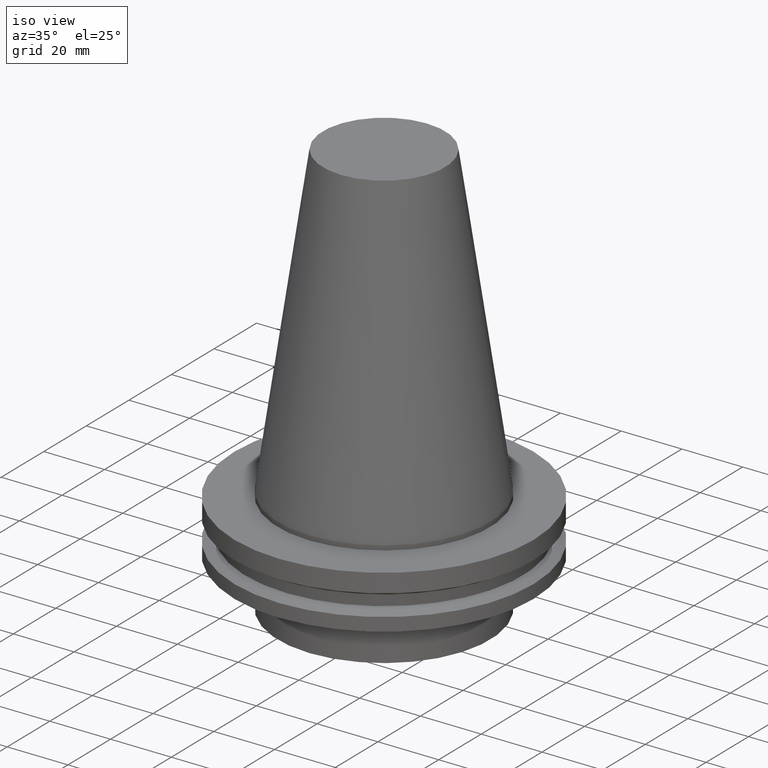
[diagram: clean part render]
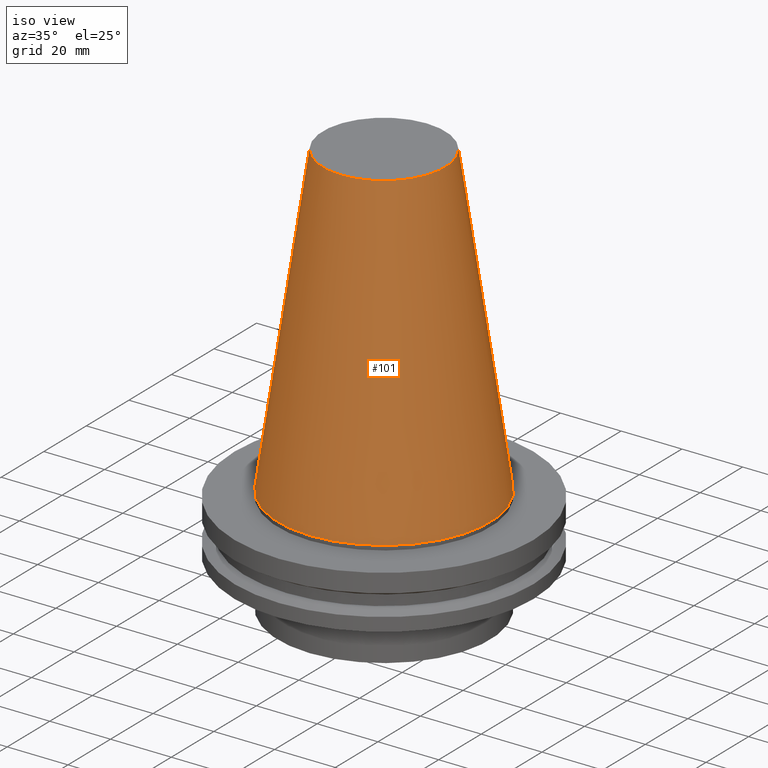
[diagram: tour spotlight — one face highlighted and labeled with its STEP entity id]
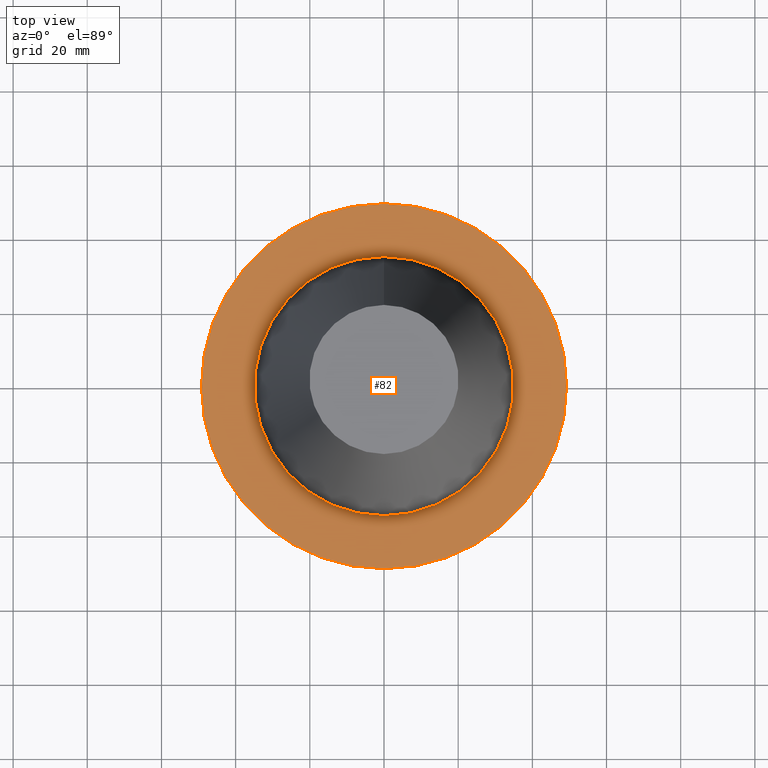
[diagram: tour spotlight — one face highlighted and labeled with its STEP entity id]
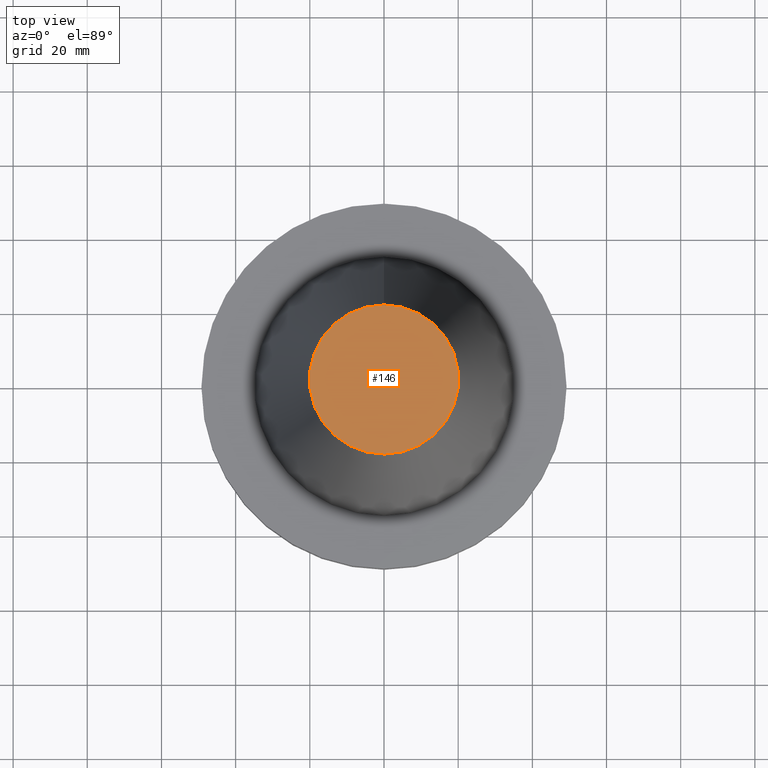
[diagram: tour spotlight — one face highlighted and labeled with its STEP entity id]
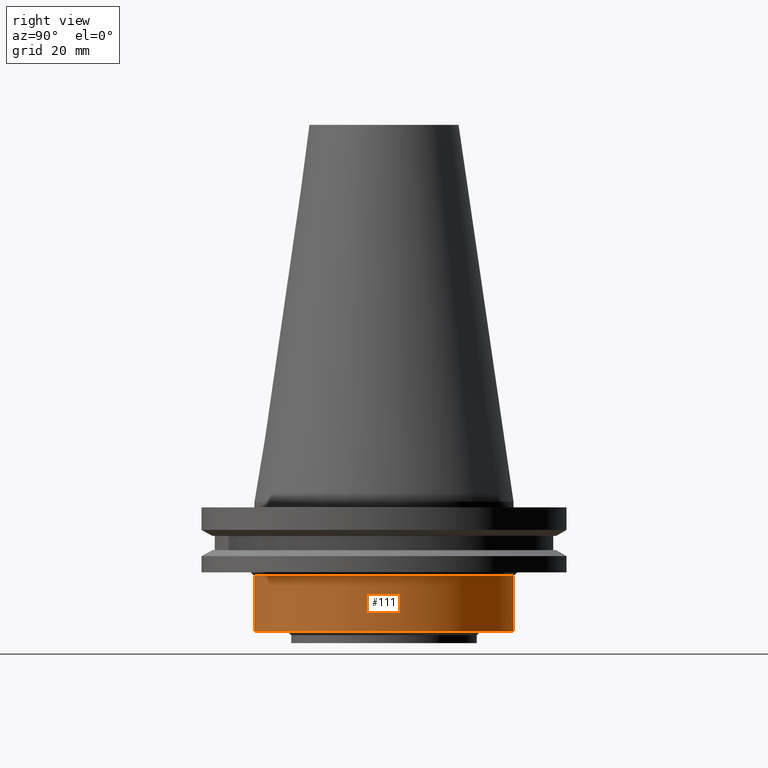
[diagram: tour spotlight — one face highlighted and labeled with its STEP entity id]
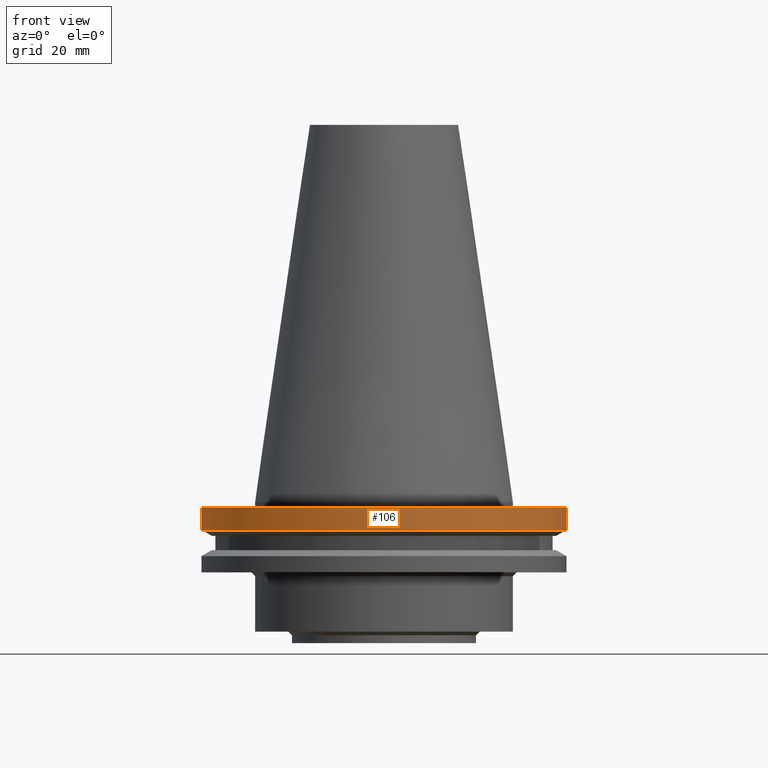
[diagram: tour spotlight — one face highlighted and labeled with its STEP entity id]
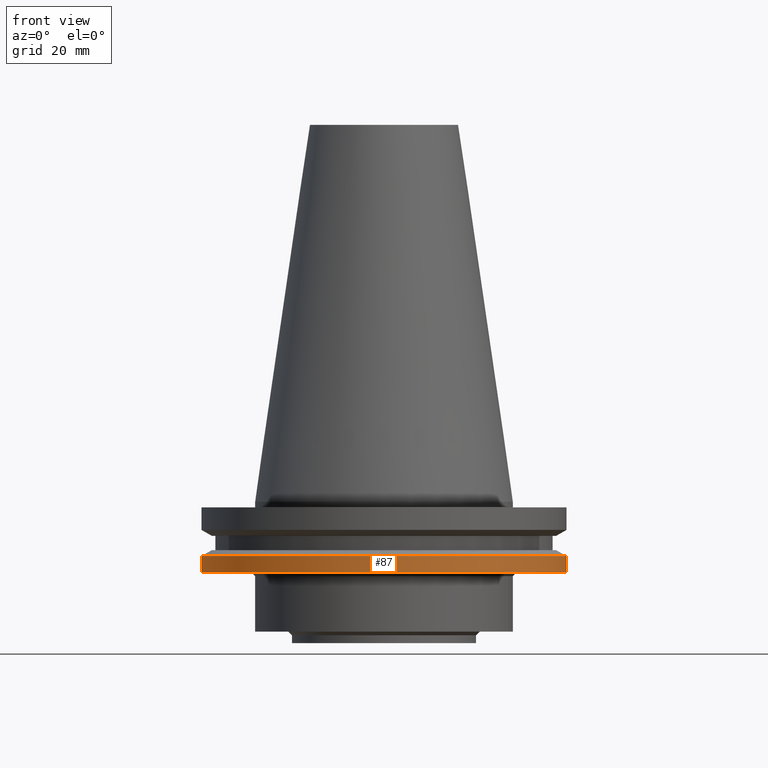
[diagram: tour spotlight — one face highlighted and labeled with its STEP entity id]
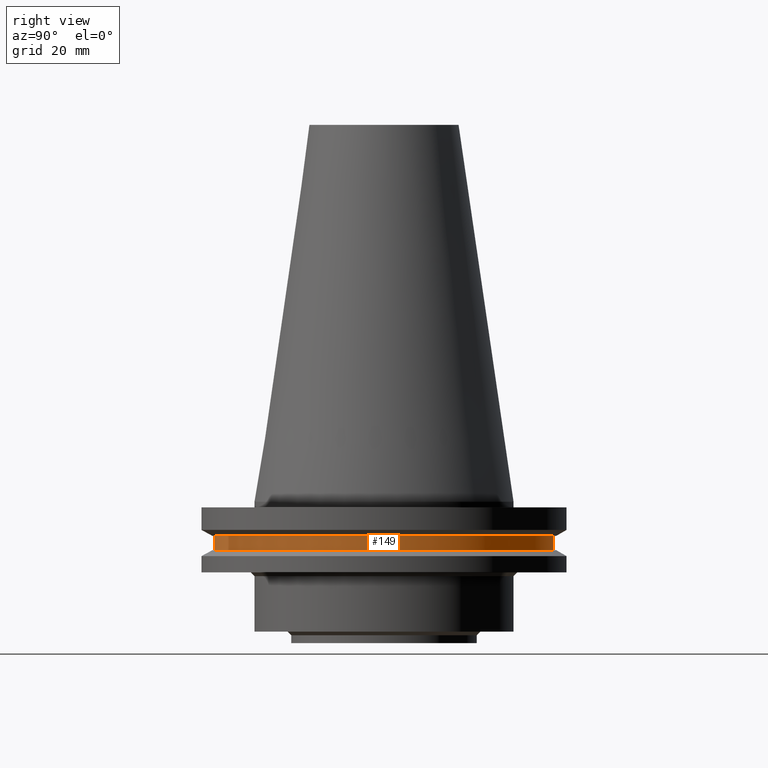
[diagram: tour spotlight — one face highlighted and labeled with its STEP entity id]
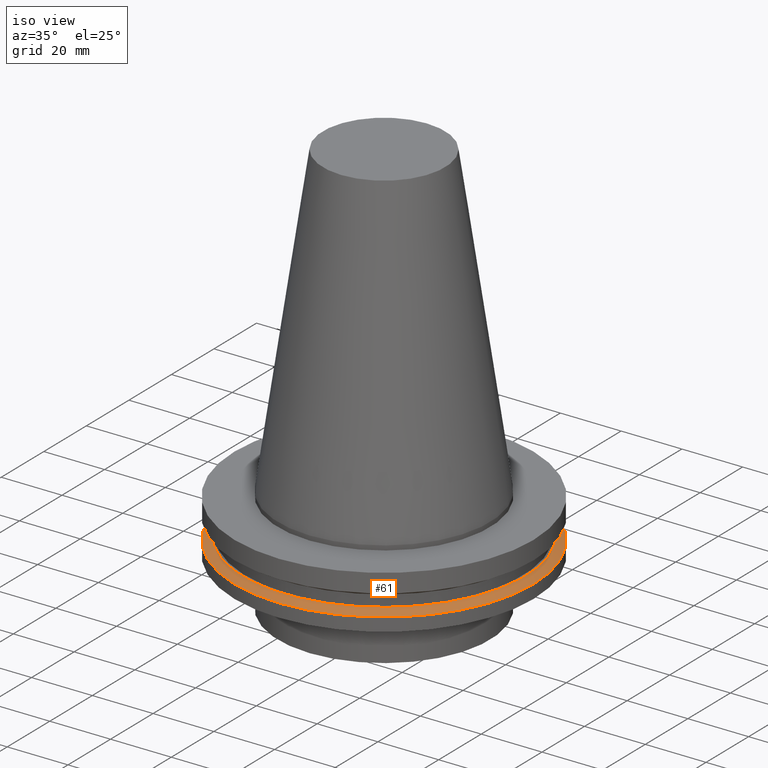
[diagram: tour spotlight — one face highlighted and labeled with its STEP entity id]
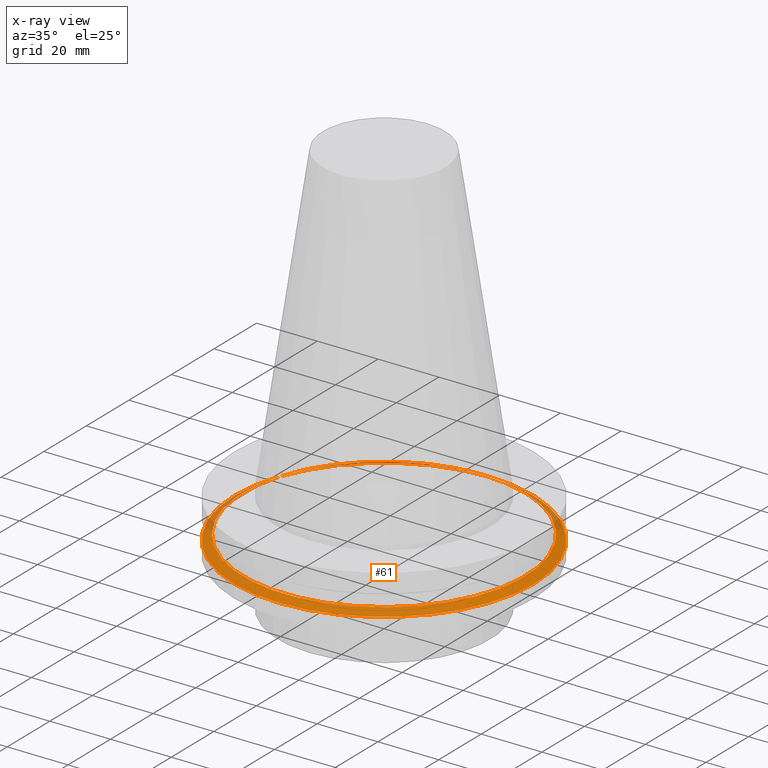
[diagram: x-ray of the same camera — body ghosted, this tour face saturated]
A machine part: a face-by-face anatomy tour. The part has 18 B-rep faces; the first image is the clean iso view, then the 8 largest visible faces are spotlighted one at a time (largest first), each with its STEP entity span.

Face 1 — iso view, entity #101. In plain terms, the highlighted conical surface has half-angle 8.297 deg.
Definition (entity closure, byte-faithful):
#63=EDGE_CURVE('Unnamed[1]',#172,#172,#173,.T.);
#101=ADVANCED_FACE('Unnamed[1]',(#231,#232),#233,.T.);
#113=EDGE_CURVE('Unnamed[1]',#251,#251,#252,.T.);
#172=VERTEX_POINT('',#322);
#173=CIRCLE('',#323,20.1083333333333);
#231=FACE_BOUND('',#397,.T.);
#232=FACE_BOUND('',#398,.T.);
#233=CONICAL_SURFACE('',#399,27.5166666666667,0.144812498238938);
#251=VERTEX_POINT('',#422);
#252=CIRCLE('',#423,34.925);
#322=CARTESIAN_POINT('',(-6.22120573966855E-015,20.1083333333332,101.6));
#323=AXIS2_PLACEMENT_3D('',#498,#499,#500);
#397=EDGE_LOOP('',(#562));
#398=EDGE_LOOP('',(#563));
#399=AXIS2_PLACEMENT_3D('',#564,#565,#566);
#422=CARTESIAN_POINT('',(4.82986938111671E-029,34.925,-7.9153078510529E-013));
#423=AXIS2_PLACEMENT_3D('',#585,#586,#587);
#498=CARTESIAN_POINT('',(-6.22120573966855E-015,-6.78028409631478E-014,101.6));
#499=DIRECTION('',(6.12323399573677E-017,5.07982991083333E-016,-1.0));
#500=DIRECTION('',(-3.59321399333442E-032,1.0,5.07982991083333E-016));
#562=ORIENTED_EDGE('',*,*,#113,.F.);
#563=ORIENTED_EDGE('',*,*,#63,.T.);
#564=CARTESIAN_POINT('',(-3.11060286983425E-015,-4.19973050161142E-014,50.7999999999996));
#565=DIRECTION('',(6.12323399573677E-017,5.07982991083333E-016,-1.0));
#566=DIRECTION('',(-3.59321399333442E-032,1.0,5.07982991083333E-016));
#585=CARTESIAN_POINT('',(4.95993415593426E-029,-1.61917690690807E-014,-8.10018718766514E-013));
#586=DIRECTION('',(6.12323399573677E-017,5.07982991083333E-016,-1.0));
#587=DIRECTION('',(-3.59321399333442E-032,1.0,5.07982991083333E-016));

Face 2 — top view, entity #82. In plain terms, the highlighted planar face has unit normal (-0, -0, 1).
Definition (entity closure, byte-faithful):
#79=EDGE_CURVE('Unnamed[1]',#197,#197,#198,.T.);
#82=ADVANCED_FACE('Unnamed[1]',(#201,#202),#203,.T.);
#128=EDGE_CURVE('Unnamed[1]',#272,#272,#273,.T.);
#197=VERTEX_POINT('',#354);
#198=CIRCLE('',#355,34.925);
#201=FACE_OUTER_BOUND('',#359,.T.);
#202=FACE_BOUND('',#360,.T.);
#203=PLANE('',#361);
#272=VERTEX_POINT('',#448);
#273=CIRCLE('',#449,49.2124999999999);
#354=CARTESIAN_POINT('',(9.18485099360511E-017,34.925,-1.5));
#355=AXIS2_PLACEMENT_3D('',#525,#526,#527);
#359=EDGE_LOOP('',(#529));
#360=EDGE_LOOP('',(#530));
#361=AXIS2_PLACEMENT_3D('',#531,#532,#533);
#448=CARTESIAN_POINT('',(9.18485099360509E-017,49.2124999999999,-1.49999999999999));
#449=AXIS2_PLACEMENT_3D('',#606,#607,#608);
#525=CARTESIAN_POINT('',(9.18485099360524E-017,-1.54297945824561E-014,-1.50000000000001));
#526=DIRECTION('',(6.12323399573677E-017,5.07982991083333E-016,-1.0));
#527=DIRECTION('',(-3.59321399333442E-032,1.0,5.07982991083333E-016));
#529=ORIENTED_EDGE('',*,*,#128,.F.);
#530=ORIENTED_EDGE('',*,*,#79,.T.);
#531=CARTESIAN_POINT('',(9.1848509936051E-017,42.0687499999999,-1.49999999999999));
#532=DIRECTION('',(-6.12323399573677E-017,-1.22464679914735E-016,1.0));
#533=DIRECTION('',(1.23259516440783E-032,-1.0,-1.22464679914735E-016));
#606=CARTESIAN_POINT('',(9.18485099360528E-017,-1.54297945824561E-014,-1.50000000000002));
#607=DIRECTION('',(6.12323399573676E-017,5.07982991083333E-016,-1.0));
#608=DIRECTION('',(-3.59321399333442E-032,1.0,5.07982991083333E-016));

Face 3 — top view, entity #146. In plain terms, the highlighted planar face has unit normal (-0, -0, 1).
Definition (entity closure, byte-faithful):
#63=EDGE_CURVE('Unnamed[1]',#172,#172,#173,.T.);
#146=ADVANCED_FACE('Unnamed[1]',(#301),#302,.T.);
#172=VERTEX_POINT('',#322);
#173=CIRCLE('',#323,20.1083333333333);
#301=FACE_OUTER_BOUND('',#483,.T.);
#302=PLANE('',#484);
#322=CARTESIAN_POINT('',(-6.22120573966855E-015,20.1083333333332,101.6));
#323=AXIS2_PLACEMENT_3D('',#498,#499,#500);
#483=EDGE_LOOP('',(#640));
#484=AXIS2_PLACEMENT_3D('',#641,#642,#643);
#498=CARTESIAN_POINT('',(-6.22120573966855E-015,-6.78028409631478E-014,101.6));
#499=DIRECTION('',(6.12323399573677E-017,5.07982991083333E-016,-1.0));
#500=DIRECTION('',(-3.59321399333442E-032,1.0,5.07982991083333E-016));
#640=ORIENTED_EDGE('',*,*,#63,.F.);
#641=CARTESIAN_POINT('',(-6.22120573966855E-015,10.0541666666666,101.6));
#642=DIRECTION('',(-6.12323399573677E-017,-1.22464679914735E-016,1.0));
#643=DIRECTION('',(1.23259516440783E-032,-1.0,-1.22464679914735E-016));

Face 4 — right view, entity #111. In plain terms, the highlighted cylindrical surface (bore or boss wall) has radius 34.925 mm, axis along (0, 0, -1).
Definition (entity closure, byte-faithful):
#77=EDGE_CURVE('Unnamed[1]',#194,#194,#195,.T.);
#84=EDGE_CURVE('Unnamed[1]',#205,#205,#206,.T.);
#111=ADVANCED_FACE('Unnamed[1]',(#247,#248),#249,.T.);
#194=VERTEX_POINT('',#350);
#195=CIRCLE('',#351,34.9249999999998);
#205=VERTEX_POINT('',#364);
#206=CIRCLE('',#365,34.9250000000001);
#247=FACE_BOUND('',#417,.T.);
#248=FACE_BOUND('',#418,.T.);
#249=CYLINDRICAL_SURFACE('',#419,34.9249999999999);
#350=CARTESIAN_POINT('',(2.14313189850786E-015,34.9249999999998,-34.9999999999999));
#351=AXIS2_PLACEMENT_3D('',#522,#523,#524);
#364=CARTESIAN_POINT('',(1.22770841614522E-015,34.925,-20.05));
#365=AXIS2_PLACEMENT_3D('',#534,#535,#536);
#417=EDGE_LOOP('',(#580));
#418=EDGE_LOOP('',(#581));
#419=AXIS2_PLACEMENT_3D('',#582,#583,#584);
#522=CARTESIAN_POINT('',(2.14313189850786E-015,1.5876356188355E-015,-34.9999999999999));
#523=DIRECTION('',(6.12323399573677E-017,5.07982991083333E-016,-1.0));
#524=DIRECTION('',(-3.59321399333442E-032,1.0,5.07982991083333E-016));
#534=CARTESIAN_POINT('',(1.22770841614522E-015,-6.00671009786027E-015,-20.05));
#535=DIRECTION('',(6.12323399573677E-017,5.07982991083333E-016,-1.0));
#536=DIRECTION('',(-3.59321399333442E-032,1.0,5.07982991083333E-016));
#580=ORIENTED_EDGE('',*,*,#77,.F.);
#581=ORIENTED_EDGE('',*,*,#84,.T.);
#582=CARTESIAN_POINT('',(1.68542015732654E-015,-2.20953723951239E-015,-27.525));
#583=DIRECTION('',(6.12323399573677E-017,5.07982991083333E-016,-1.0));
#584=DIRECTION('',(-3.59321399333442E-032,1.0,5.07982991083333E-016));

Face 5 — front view, entity #106. In plain terms, the highlighted cylindrical surface (bore or boss wall) has radius 49.2125 mm, axis along (0, 0, -1).
Definition (entity closure, byte-faithful):
#68=EDGE_CURVE('Unnamed[1]',#180,#180,#181,.T.);
#106=ADVANCED_FACE('Unnamed[1]',(#239,#240),#241,.T.);
#128=EDGE_CURVE('Unnamed[1]',#272,#272,#273,.T.);
#180=VERTEX_POINT('',#332);
#181=CIRCLE('',#333,49.2125000000001);
#239=FACE_BOUND('',#407,.T.);
#240=FACE_BOUND('',#408,.T.);
#241=CYLINDRICAL_SURFACE('',#409,49.2125);
#272=VERTEX_POINT('',#448);
#273=CIRCLE('',#449,49.2124999999999);
#332=CARTESIAN_POINT('',(4.65059621976208E-016,49.2125,-7.59500000000002));
#333=AXIS2_PLACEMENT_3D('',#507,#508,#509);
#407=EDGE_LOOP('',(#571));
#408=EDGE_LOOP('',(#572));
#409=AXIS2_PLACEMENT_3D('',#573,#574,#575);
#448=CARTESIAN_POINT('',(9.18485099360509E-017,49.2124999999999,-1.49999999999999));
#449=AXIS2_PLACEMENT_3D('',#606,#607,#608);
#507=CARTESIAN_POINT('',(4.6505962197621E-016,-1.23336382518032E-014,-7.59500000000005));
#508=DIRECTION('',(6.12323399573676E-017,5.07982991083333E-016,-1.0));
#509=DIRECTION('',(-3.59321399333442E-032,1.0,5.07982991083333E-016));
#571=ORIENTED_EDGE('',*,*,#68,.F.);
#572=ORIENTED_EDGE('',*,*,#128,.T.);
#573=CARTESIAN_POINT('',(2.78454065956132E-016,-1.38817164171296E-014,-4.54750000000004));
#574=DIRECTION('',(6.12323399573677E-017,5.07982991083333E-016,-1.0));
#575=DIRECTION('',(-3.59321399333442E-032,1.0,5.07982991083333E-016));
#606=CARTESIAN_POINT('',(9.18485099360528E-017,-1.54297945824561E-014,-1.50000000000002));
#607=DIRECTION('',(6.12323399573676E-017,5.07982991083333E-016,-1.0));
#608=DIRECTION('',(-3.59321399333442E-032,1.0,5.07982991083333E-016));

Face 6 — front view, entity #87. In plain terms, the highlighted cylindrical surface (bore or boss wall) has radius 49.2125 mm, axis along (0, 0, -1).
Definition (entity closure, byte-faithful):
#87=ADVANCED_FACE('Unnamed[1]',(#209,#210),#211,.T.);
#89=EDGE_CURVE('Unnamed[1]',#213,#213,#214,.T.);
#115=EDGE_CURVE('Unnamed[1]',#254,#254,#255,.T.);
#209=FACE_BOUND('',#369,.T.);
#210=FACE_BOUND('',#370,.T.);
#211=CYLINDRICAL_SURFACE('',#371,49.2124999999999);
#213=VERTEX_POINT('',#374);
#214=CIRCLE('',#375,49.2124999999999);
#254=VERTEX_POINT('',#426);
#255=CIRCLE('',#427,49.2124999999999);
#369=EDGE_LOOP('',(#538));
#370=EDGE_LOOP('',(#539));
#371=AXIS2_PLACEMENT_3D('',#540,#541,#542);
#374=CARTESIAN_POINT('',(8.96747618675648E-016,49.2124999999999,-14.645));
#375=AXIS2_PLACEMENT_3D('',#543,#544,#545);
#426=CARTESIAN_POINT('',(1.16647607618786E-015,49.2124999999999,-19.0500000000001));
#427=AXIS2_PLACEMENT_3D('',#588,#589,#590);
#538=ORIENTED_EDGE('',*,*,#115,.F.);
#539=ORIENTED_EDGE('',*,*,#89,.T.);
#540=CARTESIAN_POINT('',(1.03161184743175E-015,-7.63352562680464E-015,-16.8475));
#541=DIRECTION('',(6.12323399573677E-017,5.07982991083333E-016,-1.0));
#542=DIRECTION('',(-3.59321399333442E-032,1.0,5.07982991083333E-016));
#543=CARTESIAN_POINT('',(8.96747618675649E-016,-8.7523581646657E-015,-14.645));
#544=DIRECTION('',(6.12323399573677E-017,5.07982991083333E-016,-1.0));
#545=DIRECTION('',(-3.59321399333442E-032,1.0,5.07982991083333E-016));
#588=CARTESIAN_POINT('',(1.16647607618786E-015,-6.51469308894357E-015,-19.0500000000001));
#589=DIRECTION('',(6.12323399573677E-017,5.07982991083333E-016,-1.0));
#590=DIRECTION('',(-3.59321399333442E-032,1.0,5.07982991083333E-016));

Face 7 — right view, entity #149. In plain terms, the highlighted cylindrical surface (bore or boss wall) has radius 45.645 mm, axis along (0, 0, -1).
Definition (entity closure, byte-faithful):
#73=EDGE_CURVE('Unnamed[1]',#188,#188,#189,.T.);
#98=EDGE_CURVE('Unnamed[1]',#227,#227,#228,.T.);
#149=ADVANCED_FACE('Unnamed[1]',(#305,#306),#307,.T.);
#188=VERTEX_POINT('',#342);
#189=CIRCLE('',#343,45.6449999999999);
#227=VERTEX_POINT('',#392);
#228=CIRCLE('',#393,45.6449999999999);
#305=FACE_BOUND('',#488,.T.);
#306=FACE_BOUND('',#489,.T.);
#307=CYLINDRICAL_SURFACE('',#490,45.6449999999999);
#342=CARTESIAN_POINT('',(5.63337527607778E-016,45.6449999999999,-9.19999999999993));
#343=AXIS2_PLACEMENT_3D('',#516,#517,#518);
#392=CARTESIAN_POINT('',(7.98469713044071E-016,45.6449999999999,-13.04));
#393=AXIS2_PLACEMENT_3D('',#558,#559,#560);
#488=EDGE_LOOP('',(#645));
#489=EDGE_LOOP('',(#646));
#490=AXIS2_PLACEMENT_3D('',#647,#648,#649);
#516=CARTESIAN_POINT('',(5.63337527607779E-016,-1.15183255511145E-014,-9.19999999999995));
#517=DIRECTION('',(6.12323399573677E-017,5.07982991083333E-016,-1.0));
#518=DIRECTION('',(-3.59321399333442E-032,1.0,5.07982991083333E-016));
#558=CARTESIAN_POINT('',(7.98469713044073E-016,-9.56767086535446E-015,-13.04));
#559=DIRECTION('',(6.12323399573677E-017,5.07982991083333E-016,-1.0));
#560=DIRECTION('',(-3.59321399333442E-032,1.0,5.07982991083333E-016));
#645=ORIENTED_EDGE('',*,*,#98,.F.);
#646=ORIENTED_EDGE('',*,*,#73,.T.);
#647=CARTESIAN_POINT('',(6.80903620325926E-016,-1.05429982082345E-014,-11.12));
#648=DIRECTION('',(6.12323399573677E-017,5.07982991083333E-016,-1.0));
#649=DIRECTION('',(-3.59321399333442E-032,1.0,5.07982991083333E-016));

Face 8 — iso view, entity #61. An x-ray twin of the same camera follows (body ghosted, this face saturated) — the face is partly hidden behind the body. In plain terms, the highlighted conical surface has half-angle 60 deg.
Definition (entity closure, byte-faithful):
#61=ADVANCED_FACE('Unnamed[1]',(#168,#169),#170,.T.);
#75=EDGE_CURVE('Unnamed[1]',#191,#191,#192,.T.);
#89=EDGE_CURVE('Unnamed[1]',#213,#213,#214,.T.);
#168=FACE_BOUND('',#317,.T.);
#169=FACE_BOUND('',#318,.T.);
#170=CONICAL_SURFACE('',#319,47.8225292269259,1.04719755119659);
#191=VERTEX_POINT('',#346);
#192=CIRCLE('',#347,46.4325584538519);
#213=VERTEX_POINT('',#374);
#214=CIRCLE('',#375,49.2124999999999);
#317=EDGE_LOOP('',(#493));
#318=EDGE_LOOP('',(#494));
#319=AXIS2_PLACEMENT_3D('',#495,#496,#497);
#346=CARTESIAN_POINT('',(7.98469713044071E-016,46.4325584538519,-13.04));
#347=AXIS2_PLACEMENT_3D('',#519,#520,#521);
#374=CARTESIAN_POINT('',(8.96747618675648E-016,49.2124999999999,-14.645));
#375=AXIS2_PLACEMENT_3D('',#543,#544,#545);
#493=ORIENTED_EDGE('',*,*,#89,.F.);
#494=ORIENTED_EDGE('',*,*,#75,.T.);
#495=CARTESIAN_POINT('',(8.47608665859861E-016,-9.16001451501009E-015,-13.8425));
#496=DIRECTION('',(6.12323399573677E-017,5.07982991083333E-016,-1.0));
#497=DIRECTION('',(-3.59321399333442E-032,1.0,5.07982991083333E-016));
#519=CARTESIAN_POINT('',(7.98469713044073E-016,-9.56767086535446E-015,-13.04));
#520=DIRECTION('',(6.12323399573677E-017,5.07982991083333E-016,-1.0));
#521=DIRECTION('',(-3.59321399333442E-032,1.0,5.07982991083333E-016));
#543=CARTESIAN_POINT('',(8.96747618675649E-016,-8.7523581646657E-015,-14.645));
#544=DIRECTION('',(6.12323399573677E-017,5.07982991083333E-016,-1.0));
#545=DIRECTION('',(-3.59321399333442E-032,1.0,5.07982991083333E-016));